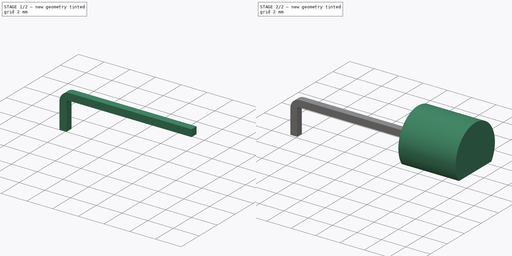
[diagram: build sequence overview — one tinted view per stage of 2, left to right]
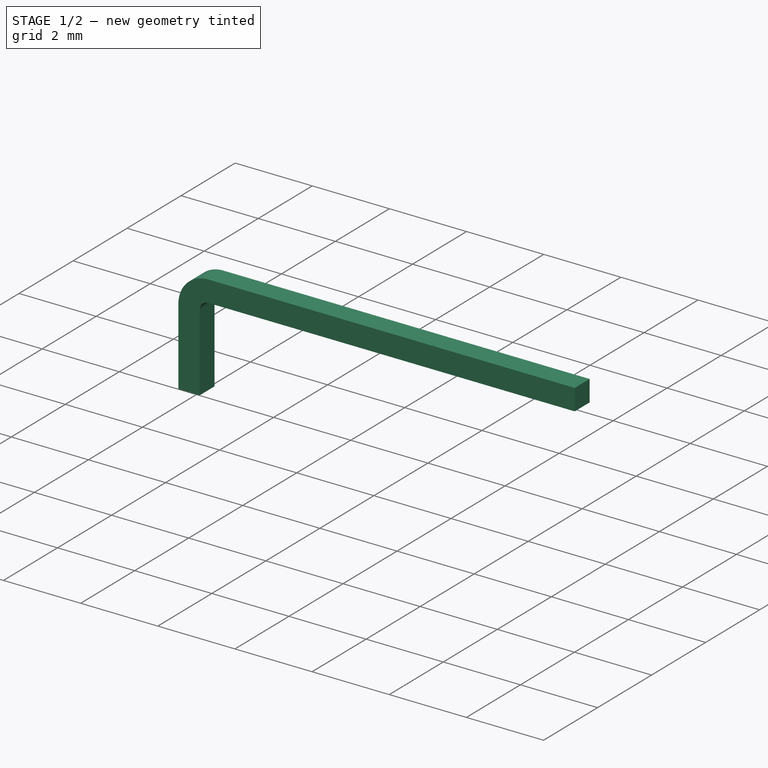
[diagram: stage 1 of 2 — iso view after this stage's code; geometry added in this stage tinted green]
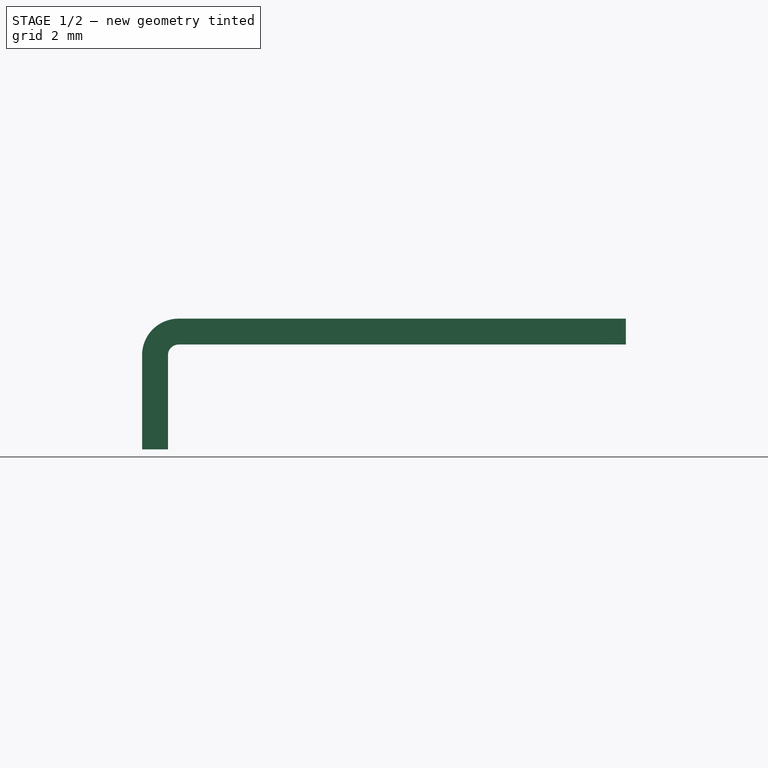
[diagram: stage 1 of 2 — front view after this stage's code; geometry added in this stage tinted green]
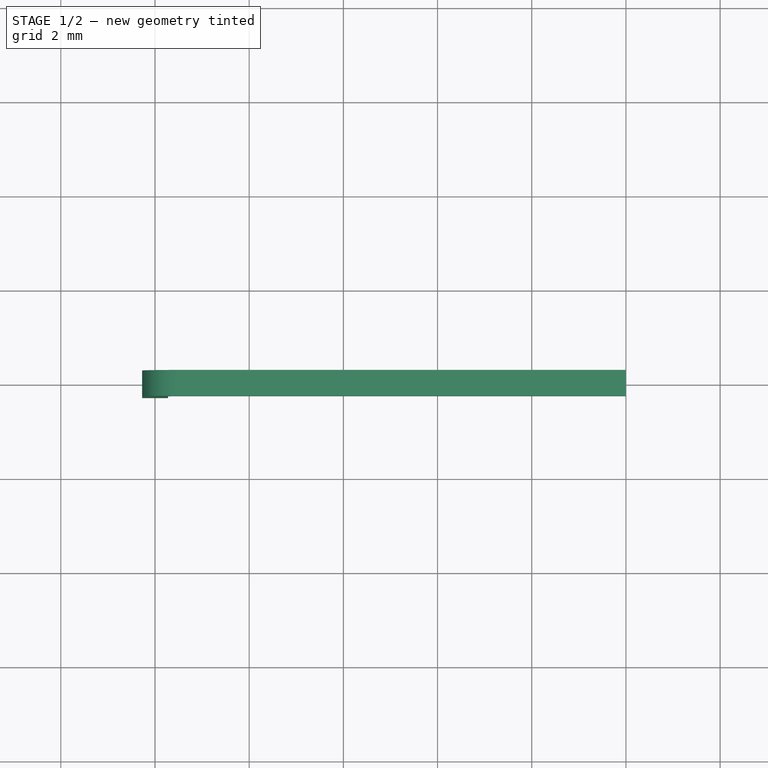
[diagram: stage 1 of 2 — top view after this stage's code; geometry added in this stage tinted green]
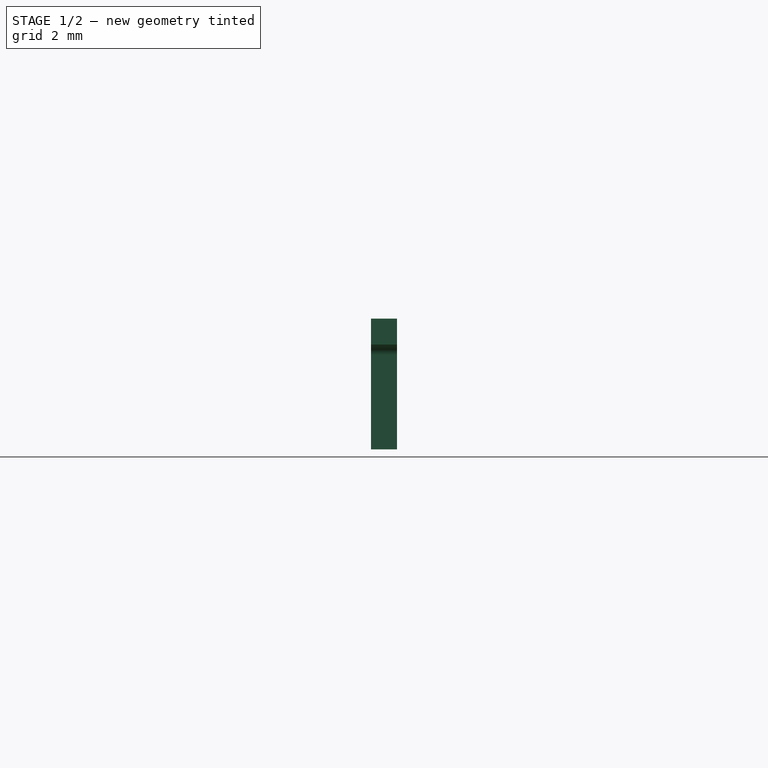
[diagram: stage 1 of 2 — right view after this stage's code; geometry added in this stage tinted green]
FCSTD DOCUMENT  (FreeCAD 0.19R24291 (Git))
Label: DallasSensor
License: All rights reserved
LicenseURL: http://en.wikipedia.org/wiki/All_rights_reserved
objects: Sketcher::SketchObject×7, PartDesign::Body×4, PartDesign::AdditivePipe×3, PartDesign::Pad×1, App::LinkGroup×1
note: 19 computed .brp shape members not serialized (recipe doc carries the construction recipe); baked Part::Feature solids carry a one-line shape summary decoded from their .brp

FEATURE [PartDesign::Body] Body007  label="DallasPin002"
  Group = -> [Sketch011,Sketch010,AdditivePipe001]
  Origin = -> Origin007
  Placement = pos=(0,0,0) rot=(1,0,0;3.14159rad)
  Tip = -> AdditivePipe001
FEATURE [Sketcher::SketchObject] Sketch012  label="pin crs002"
  AttachmentOffset = pos=(0,0,-1) rot=(0,0,1;0rad)
  FullyConstrained = true
  MapMode = 5
  Placement = pos=(0,0,-1) rot=(0,0,1;0rad)
  sketch-geometry (4):
    g0: LineSegment StartX=-0.275 StartY=0.275 StartZ=0 EndX=0.275 EndY=0.275 EndZ=0
    g1: LineSegment StartX=0.275 StartY=0.275 StartZ=0 EndX=0.275 EndY=-0.275 EndZ=0
    g2: LineSegment StartX=0.275 StartY=-0.275 StartZ=0 EndX=-0.275 EndY=-0.275 EndZ=0
    g3: LineSegment StartX=-0.275 StartY=-0.275 StartZ=0 EndX=-0.275 EndY=0.275 EndZ=0
  constraints (10):
    c: Coincident(g0,g1)
    c: Coincident(g1,g2)
    c: Coincident(g2,g3)
    c: Coincident(g3,g0)
    c: Horizontal(g2)
    c: Vertical(g3)
    c: Symmetric(g1,g0,g-1)
    c: Symmetric(g0,g0,g-2)
    c: Equal(g0,g1)
    c: DistanceX(g0,g0) = 0.55
FEATURE [Sketcher::SketchObject] Sketch013  label="pin trj002"
  FullyConstrained = true
  MapMode = 5
  Placement = pos=(0,0,0) rot=(1,0,0;1.5708rad)
  Support = -> [XZ_Plane008]
  sketch-geometry (3):
    g0: LineSegment StartX=0.5 StartY=0 StartZ=0 EndX=10 EndY=0 EndZ=0
    g1: LineSegment StartX=0 StartY=-2.5 StartZ=0 EndX=0 EndY=-0.5 EndZ=0
    g2: ArcOfCircle CenterX=0.5 CenterY=-0.5 CenterZ=0 NormalX=0 NormalY=0 NormalZ=1 AngleXU=0 Radius=0.5 StartAngle=1.5708 EndAngle=3.14159
  constraints (9):
    c: Horizontal(g0)
    c: Vertical(g1)
    c: Tangent(g0,g2) = 1.5708
    c: Tangent(g1,g2) = 1.5708
    c: DistanceY(g1,g-1) = 2.5
    c: DistanceX(g-1,g0) = 10
    c: Radius(g2) = 0.5
    c: PointOnObject(g1,g-2)
    c: PointOnObject(g0,g-1)
FEATURE [PartDesign::AdditivePipe] AdditivePipe002
  AuxilleryCurvelinear = true
  AuxillerySpineTangent = false
  Binormal = (0,0,0)
  Mode = 0
  Placement = pos=(0,0,-1) rot=(0,0,1;0rad)
  Profile = -> Sketch012
  Spine = -> Sketch013
  SpineTangent = false
  Transformation = 0
  Transition = 0
FEATURE [PartDesign::Body] Body008  label="DallasPin003"
  Group = -> [Sketch013,Sketch012,AdditivePipe002]
  Origin = -> Origin008
  Placement = pos=(0,1.27,0) rot=(1,0,0;3.14159rad)
  Tip = -> AdditivePipe002
FEATURE [Sketcher::SketchObject] Sketch014  label="pin crs003"
  AttachmentOffset = pos=(0,0,-1) rot=(0,0,1;0rad)
  FullyConstrained = true
  MapMode = 5
  Placement = pos=(0,0,-1) rot=(0,0,1;0rad)
  sketch-geometry (4):
    g0: LineSegment StartX=-0.275 StartY=0.275 StartZ=0 EndX=0.275 EndY=0.275 EndZ=0
    g1: LineSegment StartX=0.275 StartY=0.275 StartZ=0 EndX=0.275 EndY=-0.275 EndZ=0
    g2: LineSegment StartX=0.275 StartY=-0.275 StartZ=0 EndX=-0.275 EndY=-0.275 EndZ=0
    g3: LineSegment StartX=-0.275 StartY=-0.275 StartZ=0 EndX=-0.275 EndY=0.275 EndZ=0
  constraints (10):
    c: Coincident(g0,g1)
    c: Coincident(g1,g2)
    c: Coincident(g2,g3)
    c: Coincident(g3,g0)
    c: Horizontal(g2)
    c: Vertical(g3)
    c: Symmetric(g1,g0,g-1)
    c: Symmetric(g0,g0,g-2)
    c: Equal(g0,g1)
    c: DistanceX(g0,g0) = 0.55
FEATURE [Sketcher::SketchObject] Sketch015  label="pin trj003"
  FullyConstrained = true
  MapMode = 5
  Placement = pos=(0,0,0) rot=(1,0,0;1.5708rad)
  Support = -> [XZ_Plane009]
  sketch-geometry (3):
    g0: LineSegment StartX=0.5 StartY=0 StartZ=0 EndX=10 EndY=0 EndZ=0
    g1: LineSegment StartX=0 StartY=-2.5 StartZ=0 EndX=0 EndY=-0.5 EndZ=0
    g2: ArcOfCircle CenterX=0.5 CenterY=-0.5 CenterZ=0 NormalX=0 NormalY=0 NormalZ=1 AngleXU=0 Radius=0.5 StartAngle=1.5708 EndAngle=3.14159
  constraints (9):
    c: Horizontal(g0)
    c: Vertical(g1)
    c: Tangent(g0,g2) = 1.5708
    c: Tangent(g1,g2) = 1.5708
    c: DistanceY(g1,g-1) = 2.5
    c: DistanceX(g-1,g0) = 10
    c: Radius(g2) = 0.5
    c: PointOnObject(g1,g-2)
    c: PointOnObject(g0,g-1)
FEATURE [PartDesign::AdditivePipe] AdditivePipe003
  AuxilleryCurvelinear = true
  AuxillerySpineTangent = false
  Binormal = (0,0,0)
  Mode = 0
  Placement = pos=(0,0,-1) rot=(0,0,1;0rad)
  Profile = -> Sketch014
  Spine = -> Sketch015
  SpineTangent = false
  Transformation = 0
  Transition = 0
FEATURE [PartDesign::Body] Body009  label="DallasPin001"
  Group = -> [Sketch015,Sketch014,AdditivePipe003]
  Origin = -> Origin009
  Placement = pos=(0,-1.27,0) rot=(1,0,0;3.14159rad)
  Tip = -> AdditivePipe003
FEATURE [App::LinkGroup] LinkGroup
  ElementList = -> [Body005,Body007,Body008,Body009]
  LinkMode = 0
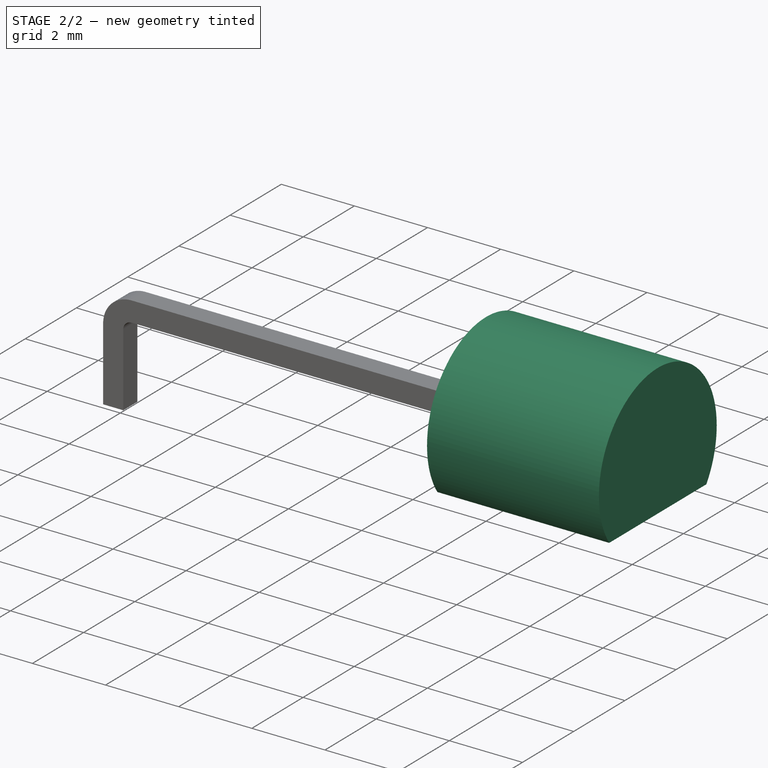
[diagram: stage 2 of 2 — iso view after this stage's code; geometry added in this stage tinted green]
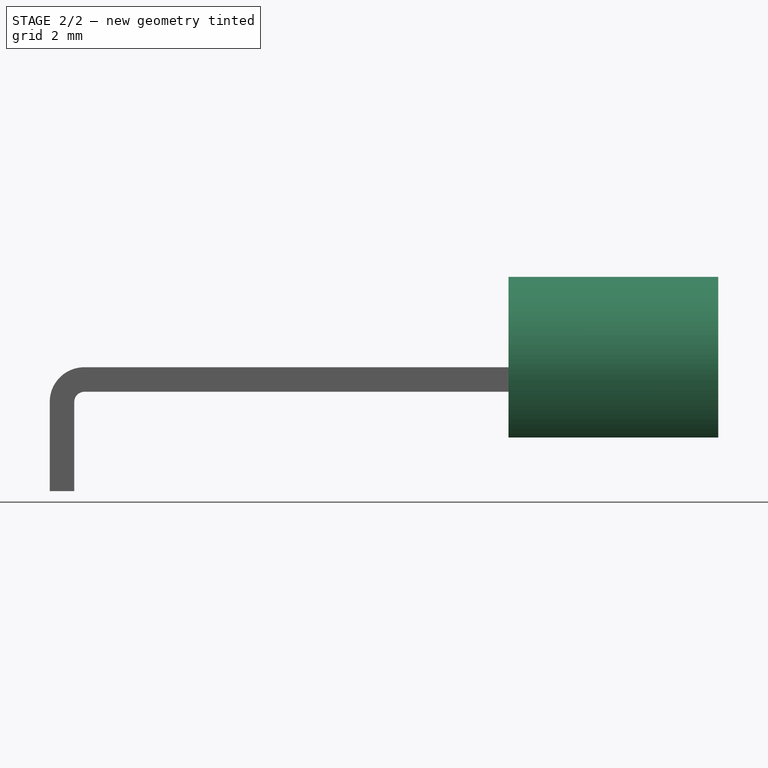
[diagram: stage 2 of 2 — front view after this stage's code; geometry added in this stage tinted green]
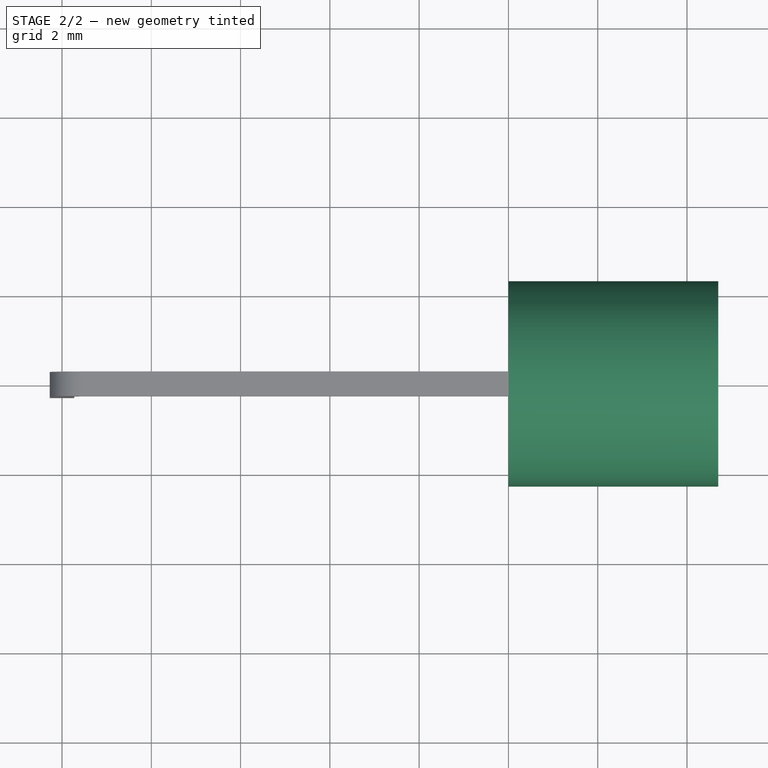
[diagram: stage 2 of 2 — top view after this stage's code; geometry added in this stage tinted green]
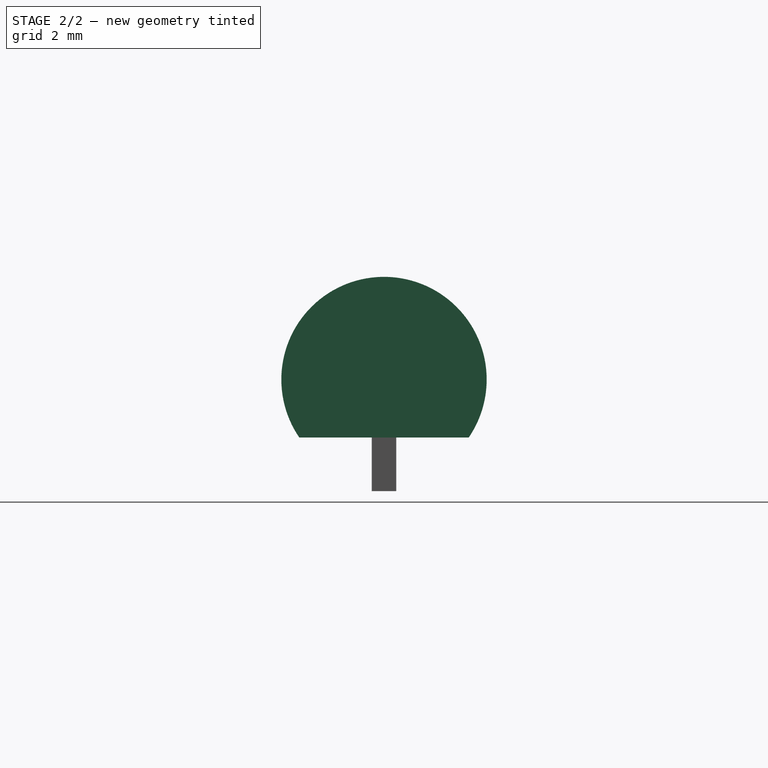
[diagram: stage 2 of 2 — right view after this stage's code; geometry added in this stage tinted green]
FEATURE [Sketcher::SketchObject] Sketch008
  AttachmentOffset = pos=(0,0,10) rot=(0,0,1;0rad)
  FullyConstrained = true
  MapMode = 5
  Placement = pos=(10,-2.2e-15,2.2e-15) rot=(0.57735,0.57735,0.57735;2.0944rad)
  Support = -> [YZ_Plane005]
  sketch-geometry (2):
    g0: ArcOfCircle CenterX=0 CenterY=0 CenterZ=0 NormalX=0 NormalY=0 NormalZ=1 AngleXU=0 Radius=2.3 StartAngle=5.68249 EndAngle=10.0255
    g1: LineSegment StartX=1.89737 StartY=-1.3 StartZ=0 EndX=-1.89737 EndY=-1.3 EndZ=0
  constraints (6):
    c: Coincident(g1,g0)
    c: Coincident(g1,g0)
    c: Coincident(g0,g-1)
    c: Diameter(g0) = 4.6
    c: Distance(g0,g1) = 1.3
    c: Horizontal(g1)
FEATURE [PartDesign::Pad] Pad007
  Direction = (1,1,1)
  Length = 4.7
  Length2 = 100
  Placement = pos=(0,0,0) rot=(0.57735,0.57735,0.57735;2.0944rad)
  Profile = -> Sketch008
  Type = 0
FEATURE [PartDesign::Body] Body005  label="DallasSensor"
  Group = -> [Sketch008,Pad007]
  Origin = -> Origin005
  Tip = -> Pad007
FEATURE [Sketcher::SketchObject] Sketch010  label="pin crs001"
  AttachmentOffset = pos=(0,0,-1) rot=(0,0,1;0rad)
  FullyConstrained = true
  MapMode = 5
  Placement = pos=(0,0,-1) rot=(0,0,1;0rad)
  sketch-geometry (4):
    g0: LineSegment StartX=-0.275 StartY=0.275 StartZ=0 EndX=0.275 EndY=0.275 EndZ=0
    g1: LineSegment StartX=0.275 StartY=0.275 StartZ=0 EndX=0.275 EndY=-0.275 EndZ=0
    g2: LineSegment StartX=0.275 StartY=-0.275 StartZ=0 EndX=-0.275 EndY=-0.275 EndZ=0
    g3: LineSegment StartX=-0.275 StartY=-0.275 StartZ=0 EndX=-0.275 EndY=0.275 EndZ=0
  constraints (10):
    c: Coincident(g0,g1)
    c: Coincident(g1,g2)
    c: Coincident(g2,g3)
    c: Coincident(g3,g0)
    c: Horizontal(g2)
    c: Vertical(g3)
    c: Symmetric(g1,g0,g-1)
    c: Symmetric(g0,g0,g-2)
    c: Equal(g0,g1)
    c: DistanceX(g0,g0) = 0.55
FEATURE [Sketcher::SketchObject] Sketch011  label="pin trj001"
  FullyConstrained = true
  MapMode = 5
  Placement = pos=(0,0,0) rot=(1,0,0;1.5708rad)
  Support = -> [XZ_Plane007]
  sketch-geometry (3):
    g0: LineSegment StartX=0.5 StartY=0 StartZ=0 EndX=10 EndY=0 EndZ=0
    g1: LineSegment StartX=0 StartY=-2.5 StartZ=0 EndX=0 EndY=-0.5 EndZ=0
    g2: ArcOfCircle CenterX=0.5 CenterY=-0.5 CenterZ=0 NormalX=0 NormalY=0 NormalZ=1 AngleXU=0 Radius=0.5 StartAngle=1.5708 EndAngle=3.14159
  constraints (9):
    c: Horizontal(g0)
    c: Vertical(g1)
    c: Tangent(g0,g2) = 1.5708
    c: Tangent(g1,g2) = 1.5708
    c: DistanceY(g1,g-1) = 2.5
    c: DistanceX(g-1,g0) = 10
    c: Radius(g2) = 0.5
    c: PointOnObject(g1,g-2)
    c: PointOnObject(g0,g-1)
FEATURE [PartDesign::AdditivePipe] AdditivePipe001
  AuxilleryCurvelinear = true
  AuxillerySpineTangent = false
  Binormal = (0,0,0)
  Mode = 0
  Placement = pos=(0,0,-1) rot=(0,0,1;0rad)
  Profile = -> Sketch010
  Spine = -> Sketch011
  SpineTangent = false
  Transformation = 0
  Transition = 0
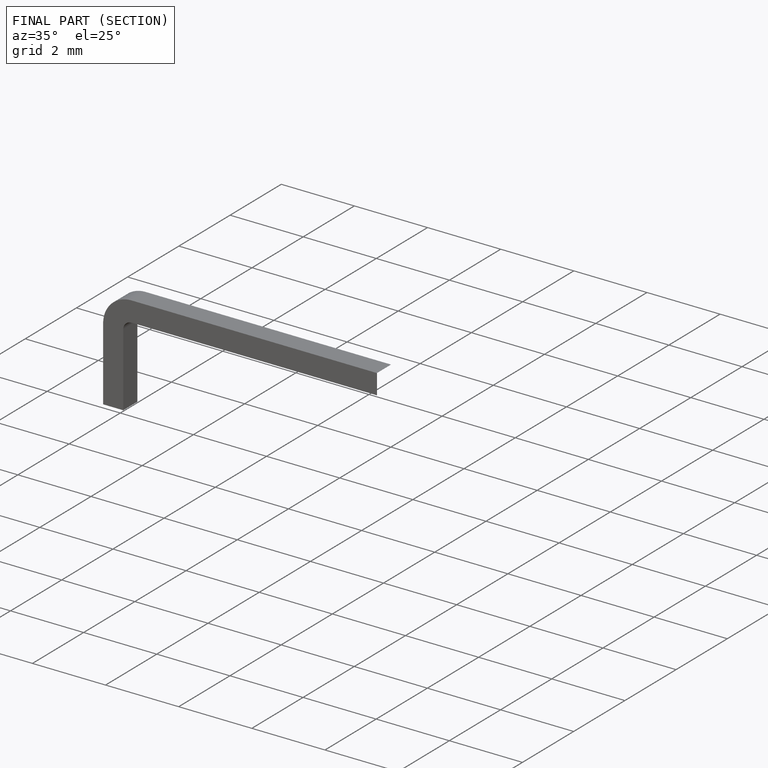
[diagram: finished part — half-section view (interior)]
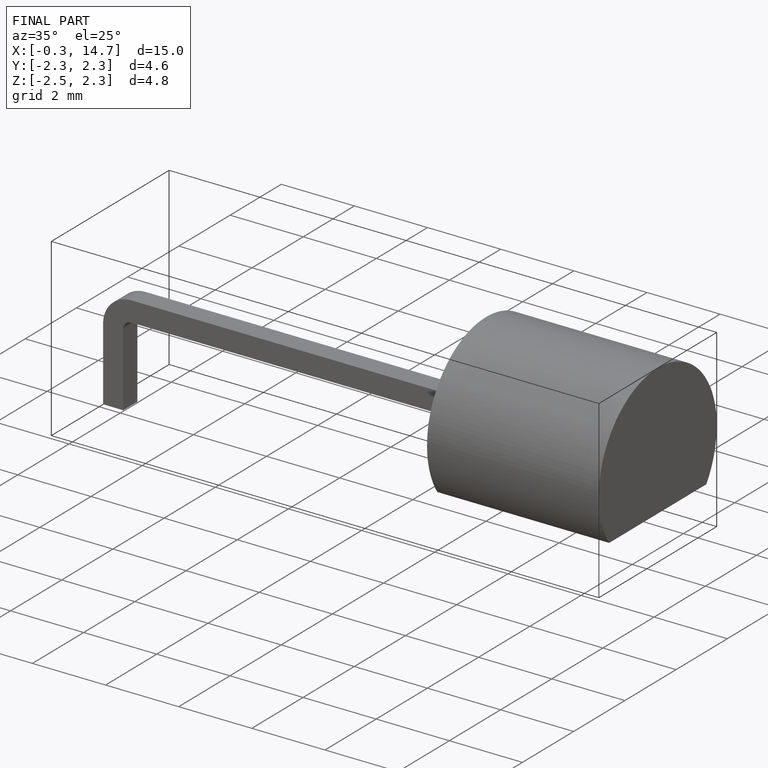
[diagram: finished part — iso view with bounding-box wireframe]
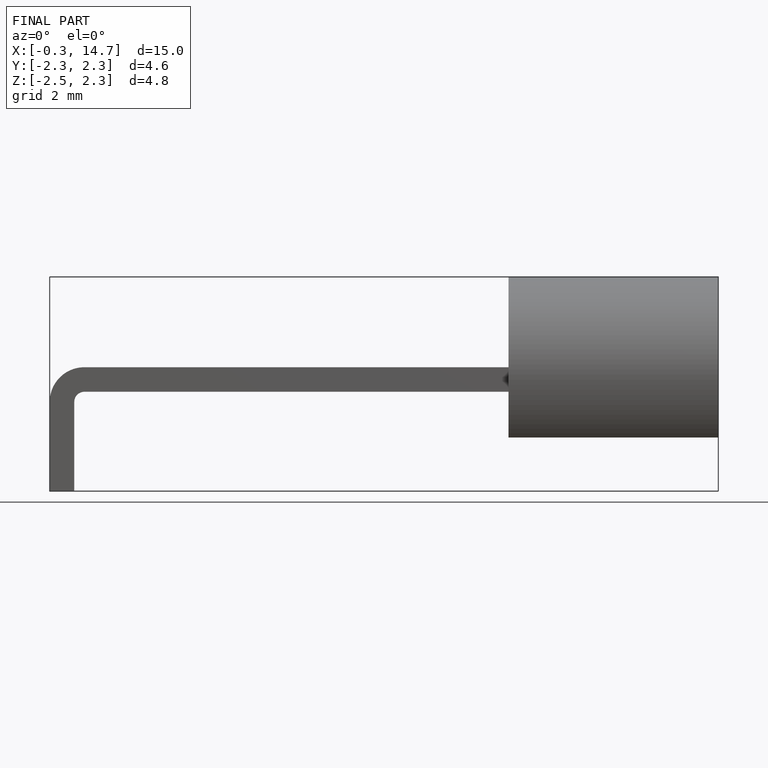
[diagram: finished part — front view with bounding-box wireframe]
